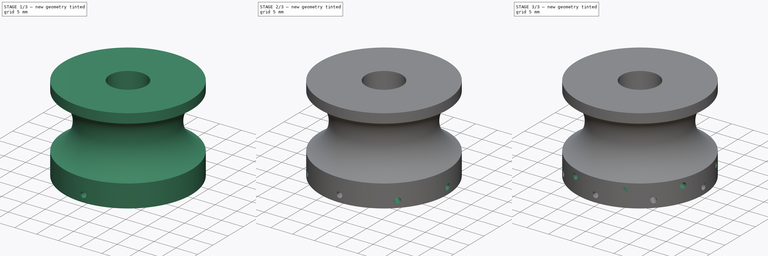
[diagram: build sequence overview — one tinted view per stage of 3, left to right]
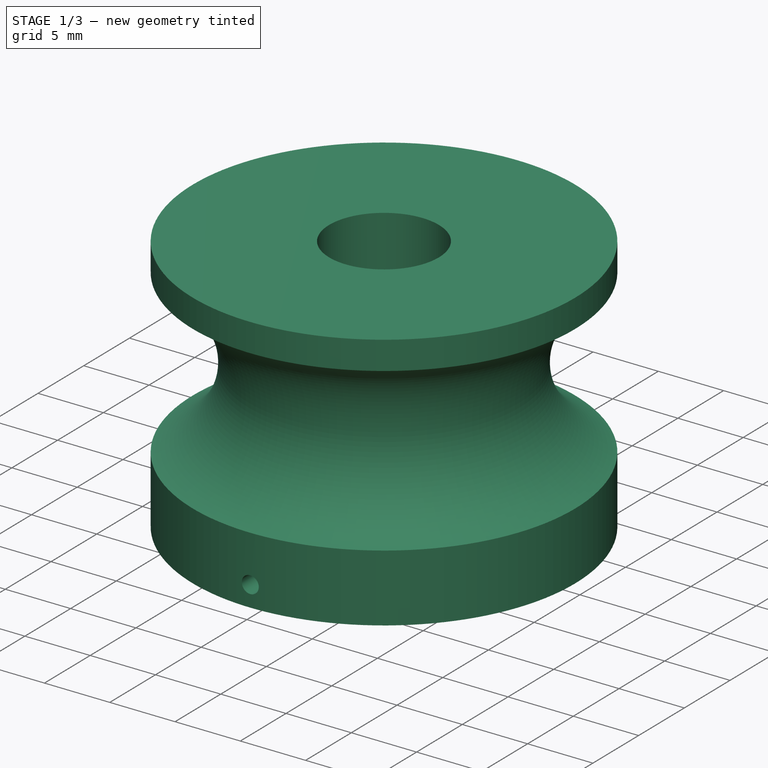
[diagram: stage 1 of 3 — iso view after this stage's code; geometry added in this stage tinted green]
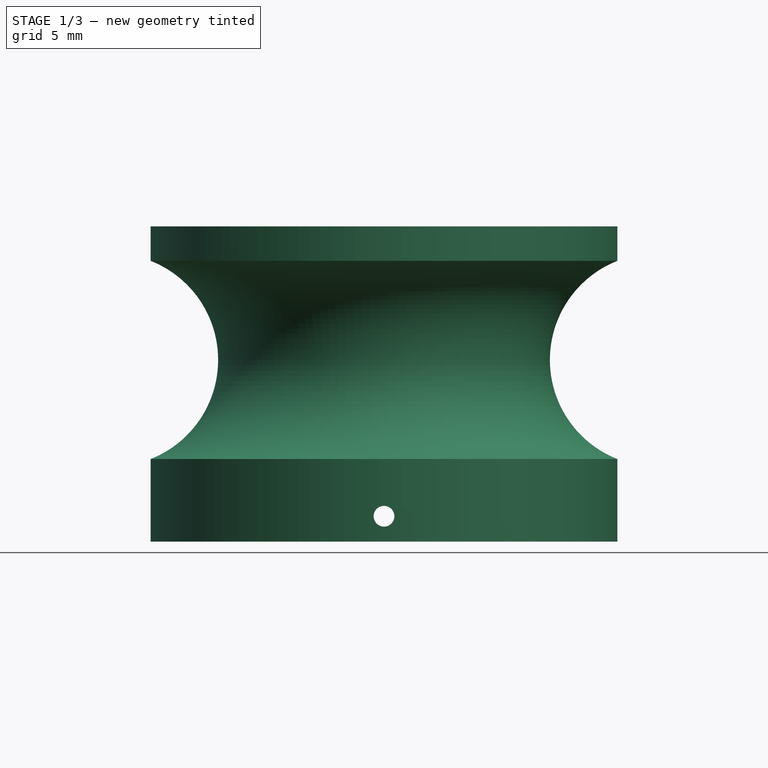
[diagram: stage 1 of 3 — front view after this stage's code; geometry added in this stage tinted green]
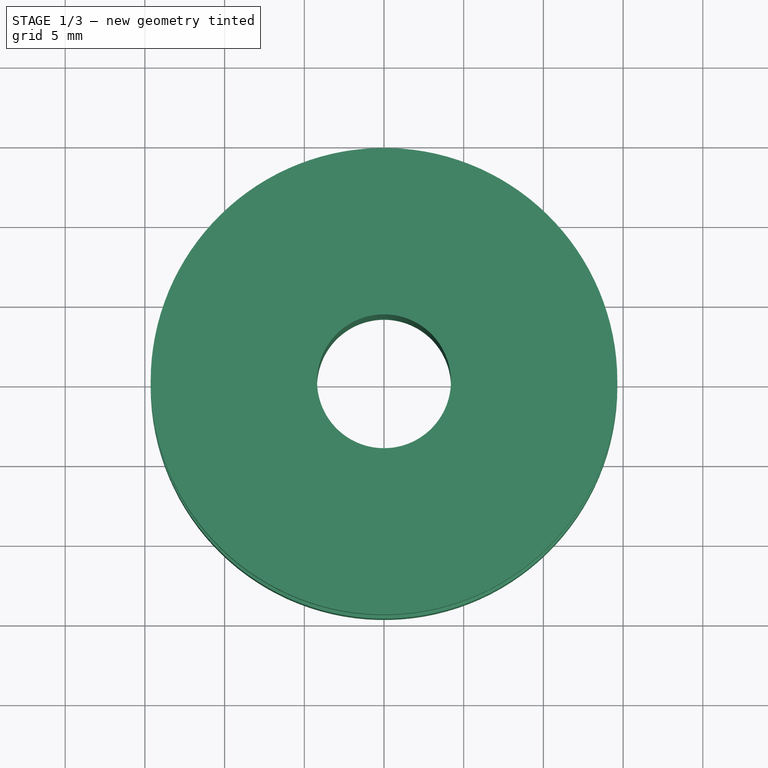
[diagram: stage 1 of 3 — top view after this stage's code; geometry added in this stage tinted green]
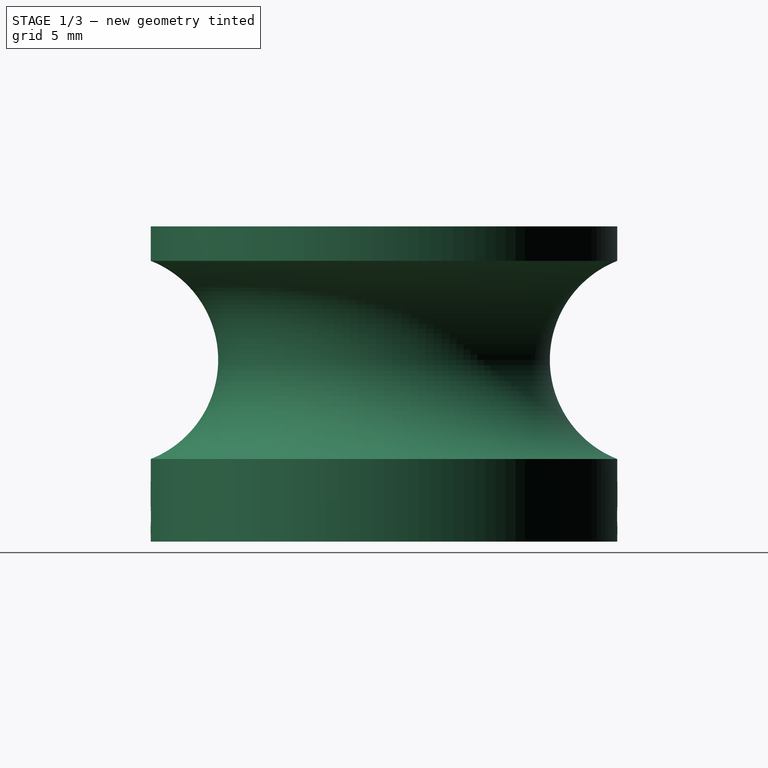
[diagram: stage 1 of 3 — right view after this stage's code; geometry added in this stage tinted green]
FCSTD DOCUMENT  (FreeCAD 0.21R33771 (Git))
Label: 00microspine
License: All rights reserved
LicenseURL: https://en.wikipedia.org/wiki/All_rights_reserved
objects: Sketcher::SketchObject×3, PartDesign::Plane×2, PartDesign::Pocket×2, PartDesign::PolarPattern×2, PartDesign::Revolution×1, PartDesign::Body×1
note: 14 computed .brp shape members not serialized (recipe doc carries the construction recipe); baked Part::Feature solids carry a one-line shape summary decoded from their .brp

FEATURE [Sketcher::SketchObject] Sketch
  FullyConstrained = false
  MapMode = 5
  Placement = pos=(0,0,0) rot=(1,0,0;1.5708rad)
  Support = -> [XZ_Plane]
  sketch-geometry (6):
    g0: LineSegment StartX=4.2 StartY=19.7766 StartZ=0 EndX=4.2 EndY=0 EndZ=0
    g1: LineSegment StartX=4.2 StartY=0 StartZ=0 EndX=14.6394 EndY=0 EndZ=0
    g2: LineSegment StartX=14.6394 StartY=19.7766 StartZ=0 EndX=4.2 EndY=19.7766 EndZ=0
    g3: LineSegment StartX=14.6394 StartY=0 StartZ=0 EndX=14.6394 EndY=5.18248 EndZ=0
    g4: LineSegment StartX=14.6394 StartY=19.7766 StartZ=0 EndX=14.6394 EndY=17.6145 EndZ=0
    g5: ArcOfCircle CenterX=17.086 CenterY=11.3985 CenterZ=0 NormalX=0 NormalY=0 NormalZ=1 AngleXU=0 Radius=6.68019 StartAngle=1.94577 EndAngle=4.33741
  constraints (14):
    c: PointOnObject(g0,g-1)
    c: Vertical(g0)
    c: Coincident(g0,g1)
    c: PointOnObject(g1,g-1)
    c: Coincident(g2,g0)
    c: Horizontal(g2)
    c: Coincident(g1,g3)
    c: Vertical(g3)
    c: Coincident(g2,g4)
    c: Vertical(g4)
    c: Equal(g1,g2)
    c: Coincident(g5,g4)
    c: Coincident(g5,g3)
    c: DistanceX(g-1,g0) = 4.2
FEATURE [PartDesign::Revolution] Revolution
  Angle = 360
  Axis = (0,2e-16,1)
  Base = (0,0,0)
  Placement = pos=(0,0,0) rot=(1,0,0;1.5708rad)
  Profile = -> Sketch
  ReferenceAxis = -> Sketch [V_Axis]
  Reversed = true
FEATURE [PartDesign::Plane] DatumPlane
  AttachmentOffset = pos=(0,0,0) rot=(1,0,0;1.5708rad)
  Length = 60
  MapMode = 45
  Placement = pos=(0,1.3e-15,2.59124) rot=(1,0,0;1.5708rad)
  ResizeMode = 0
  Support = -> [Revolution]
  Width = 60
FEATURE [Sketcher::SketchObject] Sketch001
  FullyConstrained = false
  MapMode = 5
  Placement = pos=(0,1.3e-15,2.59124) rot=(1,0,0;1.5708rad)
  Support = -> [DatumPlane]
  sketch-geometry (1):
    g0: Circle CenterX=0 CenterY=-1 CenterZ=0 NormalX=0 NormalY=0 NormalZ=1 AngleXU=0 Radius=0.65
  constraints (2):
    c: Diameter(g0) = 1.3
    c: DistanceY(g0,g-1) = 1
FEATURE [PartDesign::Pocket] Pocket
  BaseFeature = -> Revolution
  Direction = (0,1,-4e-16)
  Length = 61
  Length2 = 5
  Midplane = true
  Placement = pos=(0,0,0) rot=(1,0,0;1.5708rad)
  Profile = -> Sketch001
  ReferenceAxis = -> Sketch001 [N_Axis]
  Type = 0
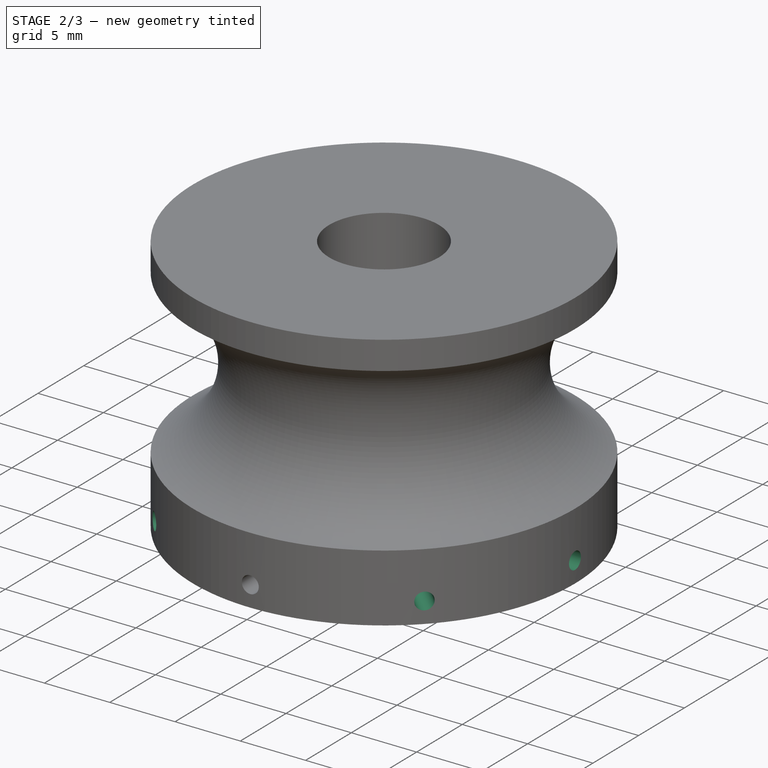
[diagram: stage 2 of 3 — iso view after this stage's code; geometry added in this stage tinted green]
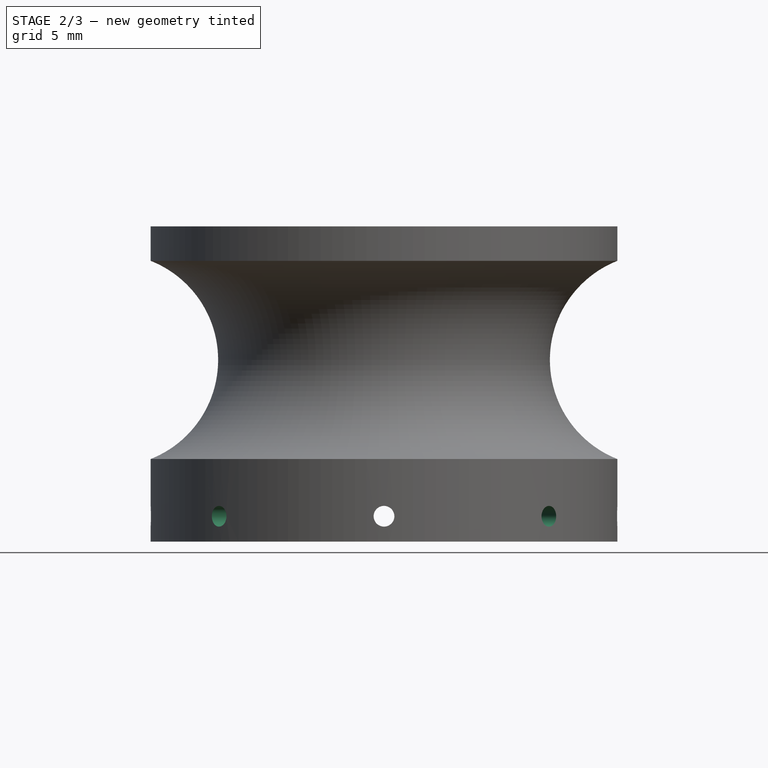
[diagram: stage 2 of 3 — front view after this stage's code; geometry added in this stage tinted green]
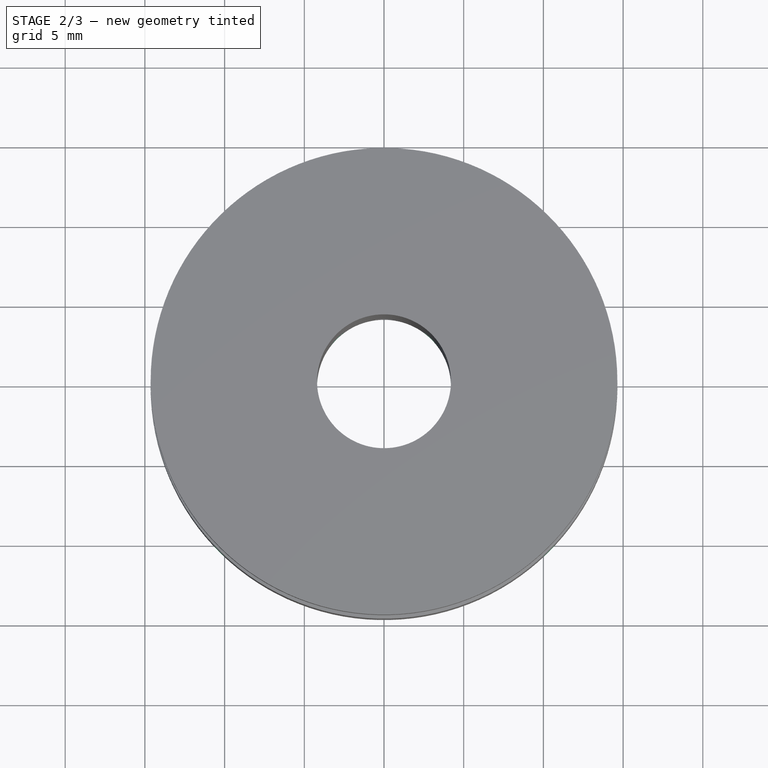
[diagram: stage 2 of 3 — top view after this stage's code; geometry added in this stage tinted green]
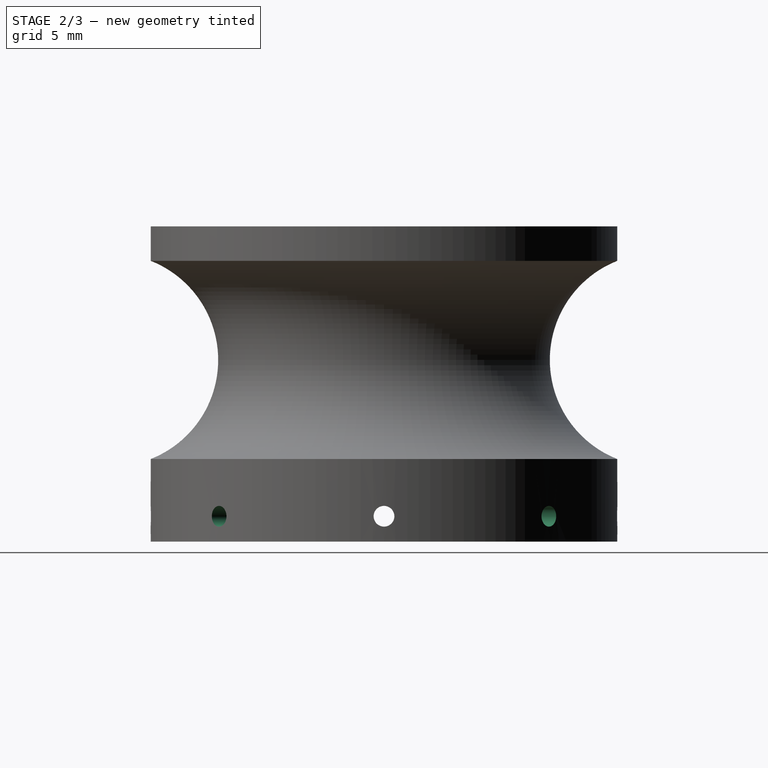
[diagram: stage 2 of 3 — right view after this stage's code; geometry added in this stage tinted green]
FEATURE [PartDesign::PolarPattern] PolarPattern
  Angle = 360
  Axis = -> Z_Axis
  BaseFeature = -> Pocket
  Occurrences = 8
  Originals = -> [Pocket]
  Placement = pos=(0,0,0) rot=(1,0,0;1.5708rad)
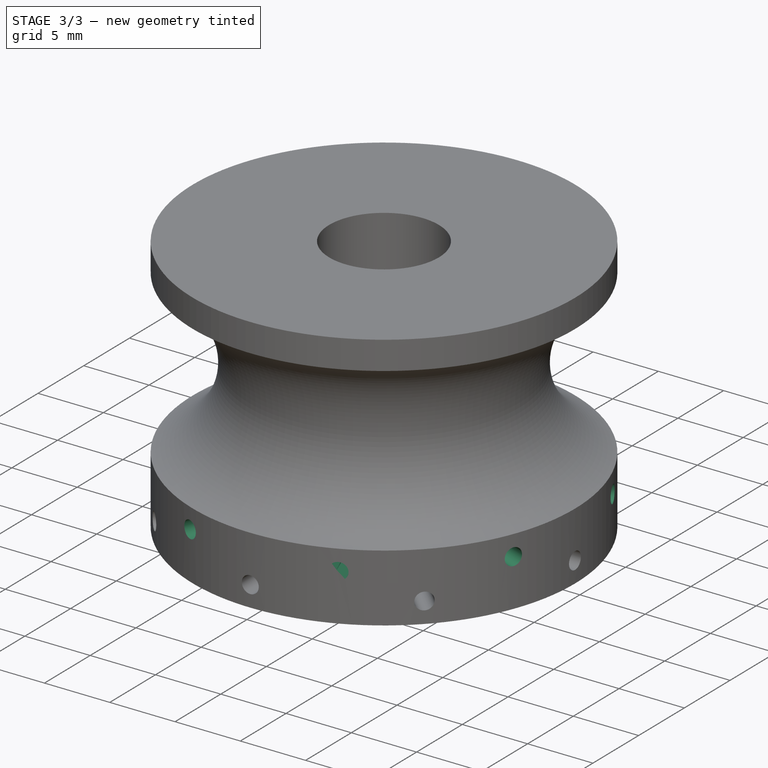
[diagram: stage 3 of 3 — iso view after this stage's code; geometry added in this stage tinted green]
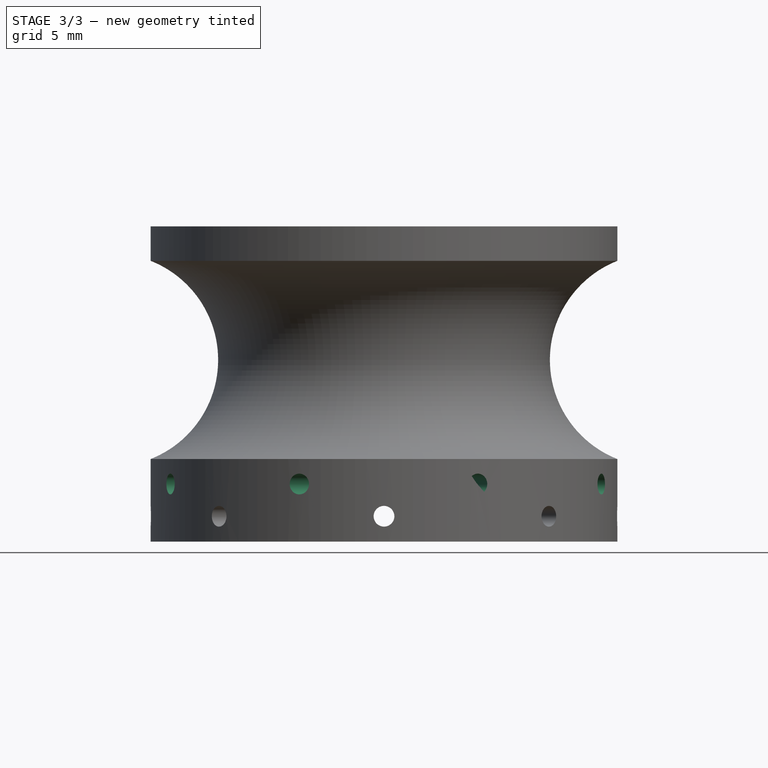
[diagram: stage 3 of 3 — front view after this stage's code; geometry added in this stage tinted green]
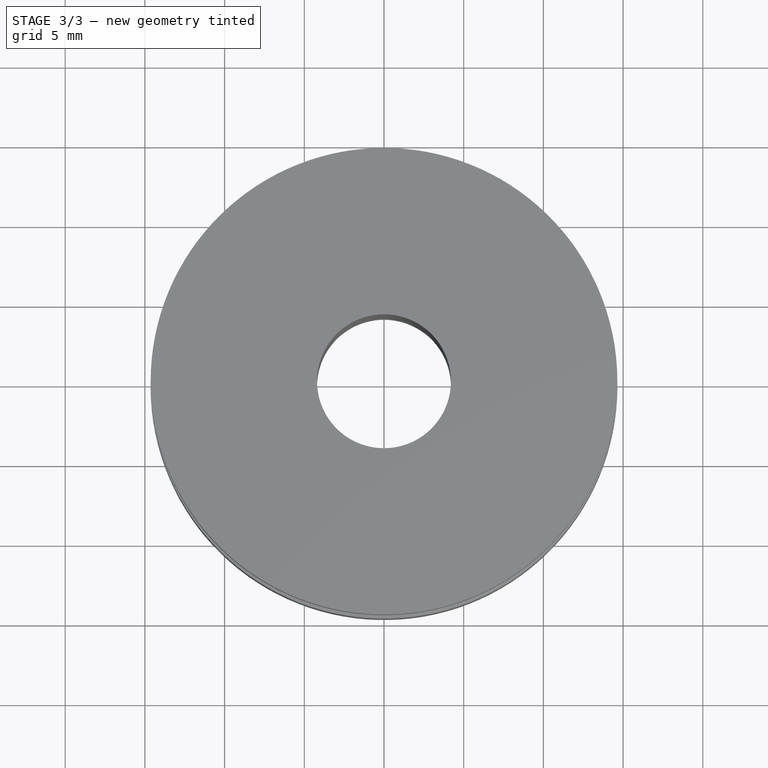
[diagram: stage 3 of 3 — top view after this stage's code; geometry added in this stage tinted green]
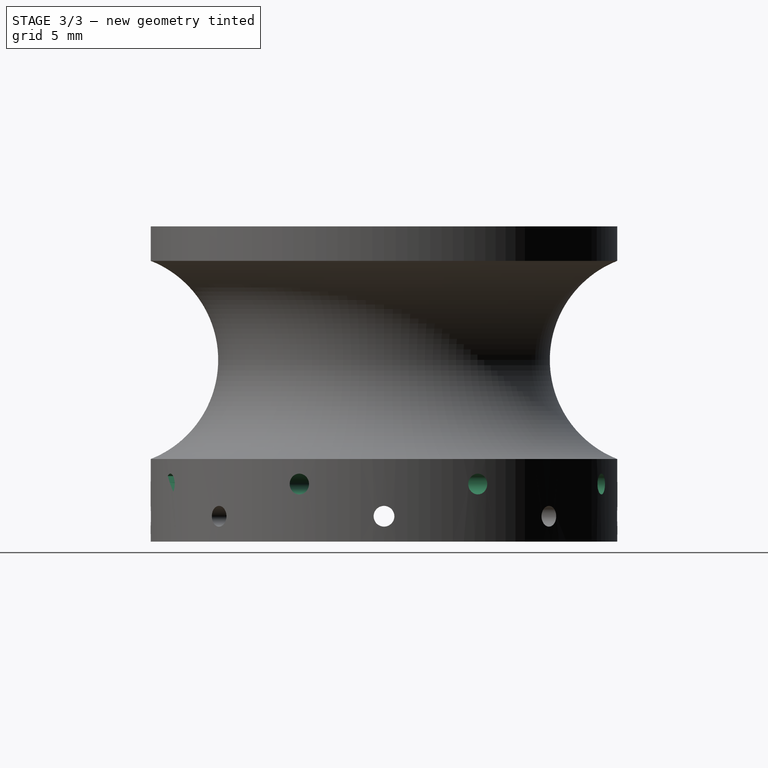
[diagram: stage 3 of 3 — right view after this stage's code; geometry added in this stage tinted green]
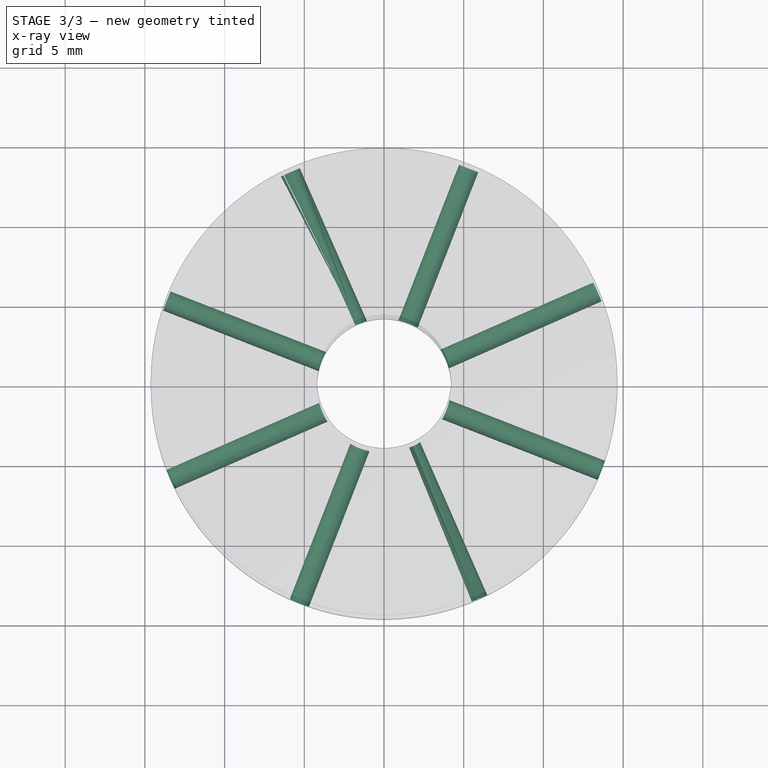
[diagram: stage 3 of 3 — x-ray composite at the top view; earlier geometry ghosted, this stage's added geometry solid]
FEATURE [PartDesign::Plane] DatumPlane001
  AttachmentOffset = pos=(0,0,0) rot=(0.962637,0.19148,0.19148;1.60887rad)
  Length = 77.3633
  MapMode = 45
  Placement = pos=(1.2334e-07,-6.90549e-07,2.61403) rot=(0.958656,0.20122,0.20122;1.61301rad)
  ResizeMode = 0
  Support = -> [PolarPattern]
  Width = 61.479
FEATURE [Sketcher::SketchObject] Sketch002
  FullyConstrained = true
  MapMode = 5
  Placement = pos=(1.2334e-07,-6.90549e-07,2.61403) rot=(0.958656,0.20122,0.20122;1.61301rad)
  Support = -> [DatumPlane001]
  sketch-geometry (1):
    g0: Circle CenterX=0 CenterY=1 CenterZ=0 NormalX=0 NormalY=0 NormalZ=1 AngleXU=0 Radius=0.65
  constraints (3):
    c: PointOnObject(g0,g-2)
    c: Diameter(g0) = 1.3
    c: DistanceY(g-1,g0) = 1
FEATURE [PartDesign::Pocket] Pocket001
  BaseFeature = -> PolarPattern
  Direction = (-0.402081,0.915604,9.99188e-09)
  Length = 88
  Length2 = 5
  Midplane = true
  Placement = pos=(0,0,0) rot=(1,0,0;1.5708rad)
  Profile = -> Sketch002
  ReferenceAxis = -> Sketch002 [N_Axis]
  Type = 0
FEATURE [PartDesign::PolarPattern] PolarPattern001
  Angle = 360
  Axis = -> Z_Axis
  BaseFeature = -> Pocket001
  Occurrences = 8
  Originals = -> [Pocket001]
  Placement = pos=(0,0,0) rot=(1,0,0;1.5708rad)
FEATURE [PartDesign::Body] Body
  Group = -> [Sketch,Revolution,DatumPlane,Sketch001,Pocket,PolarPattern,DatumPlane001,Sketch002,Pocket001,PolarPattern001]
  Origin = -> Origin
  Tip = -> PolarPattern001
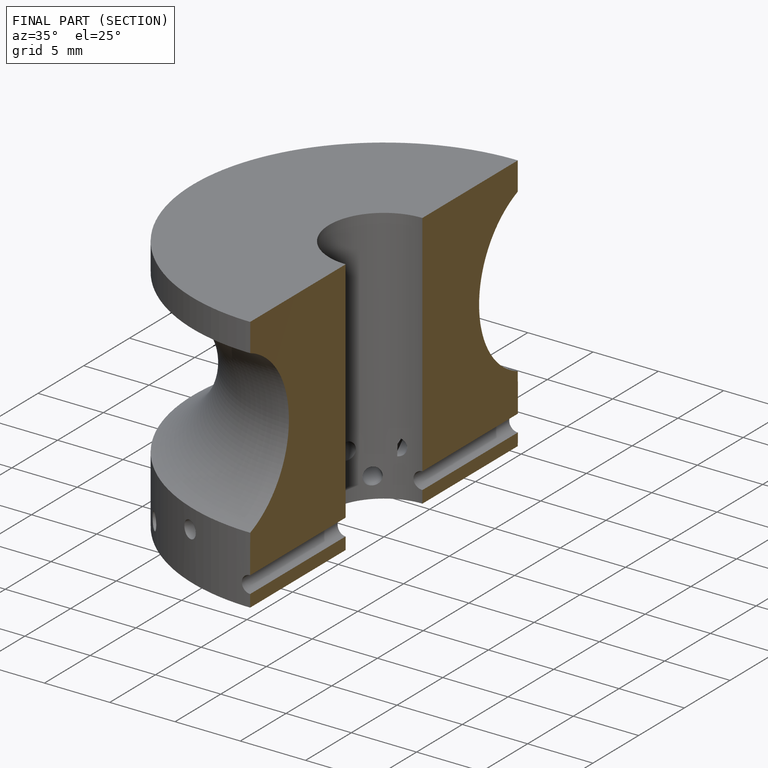
[diagram: finished part — half-section view (interior)]
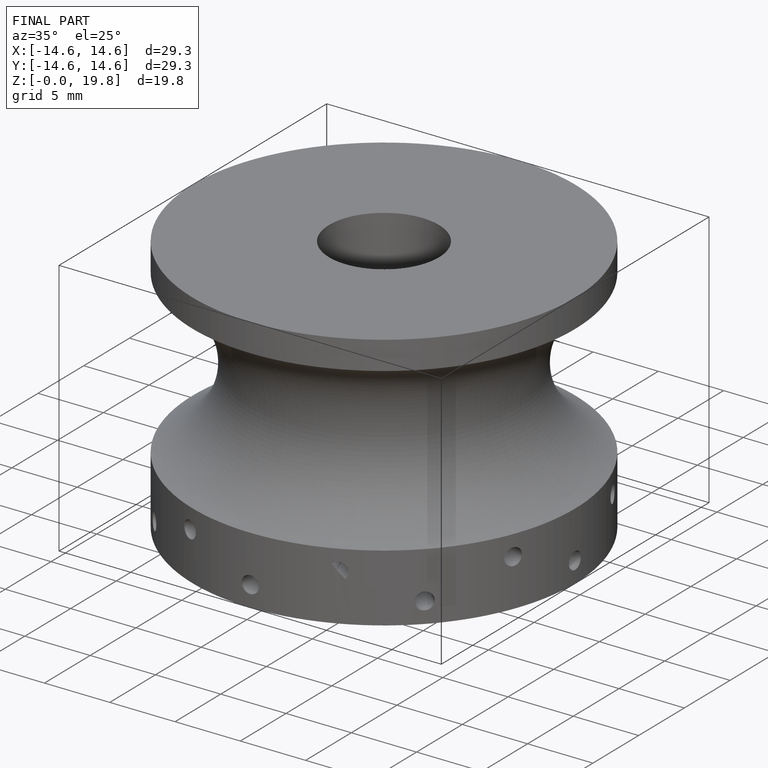
[diagram: finished part — iso view with bounding-box wireframe]
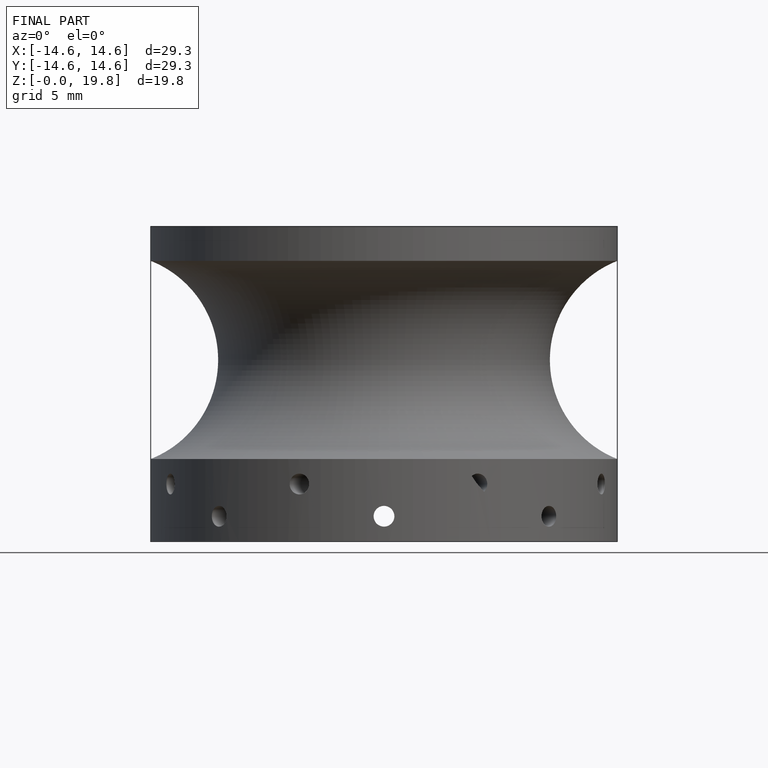
[diagram: finished part — front view with bounding-box wireframe]
